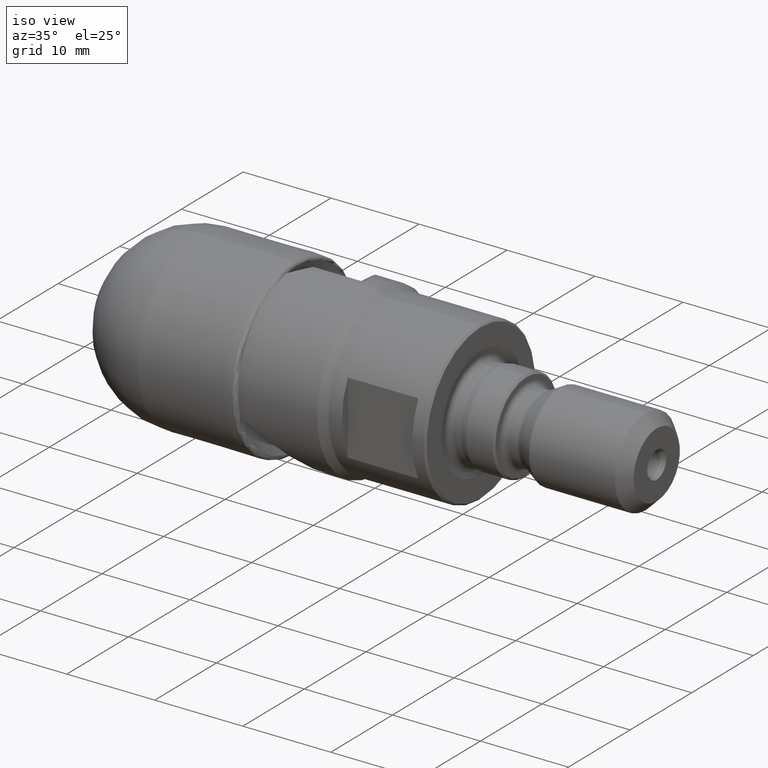
[diagram: clean part render]
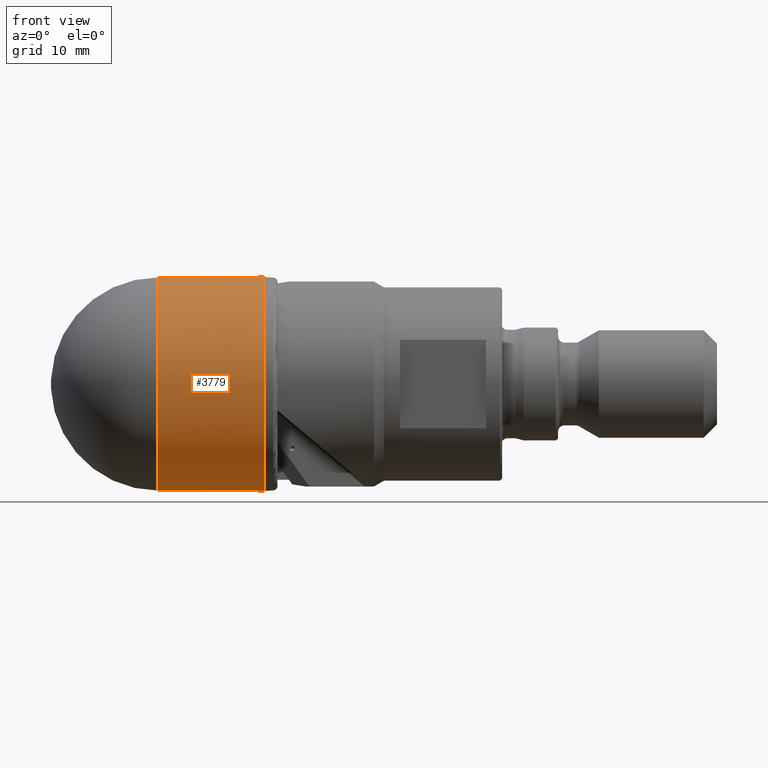
[diagram: tour spotlight — one face highlighted and labeled with its STEP entity id]
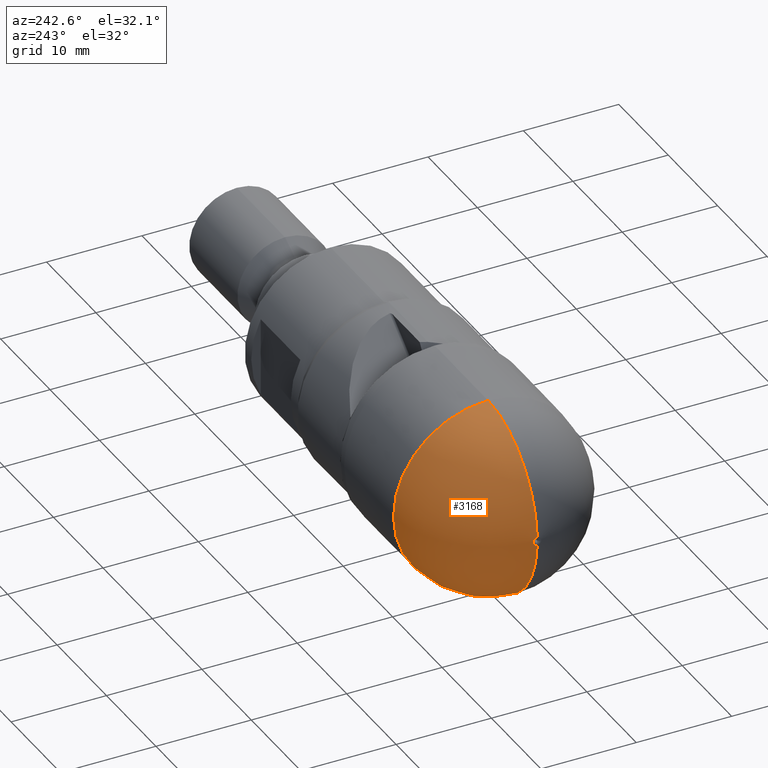
[diagram: tour spotlight — one face highlighted and labeled with its STEP entity id]
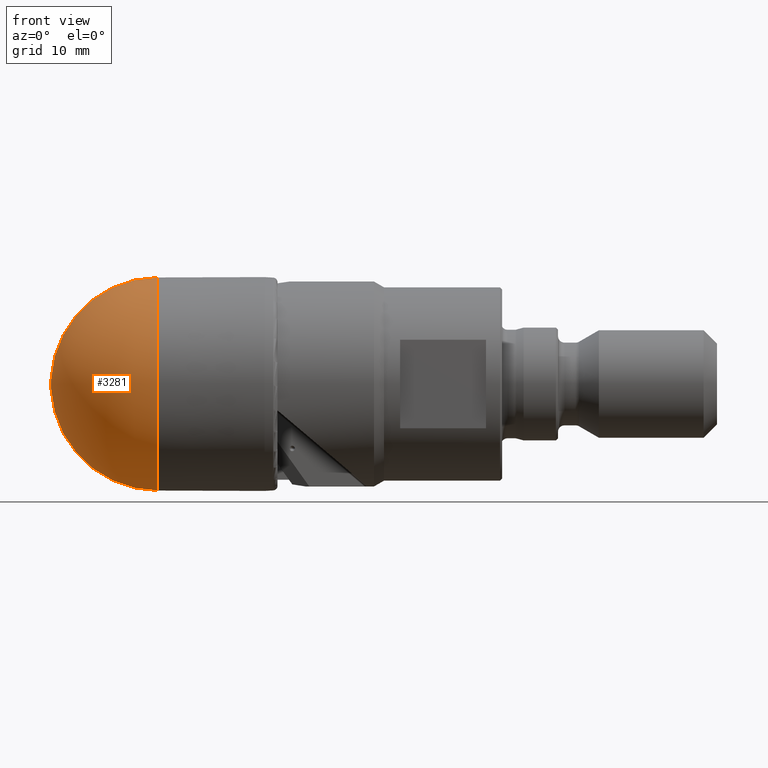
[diagram: tour spotlight — one face highlighted and labeled with its STEP entity id]
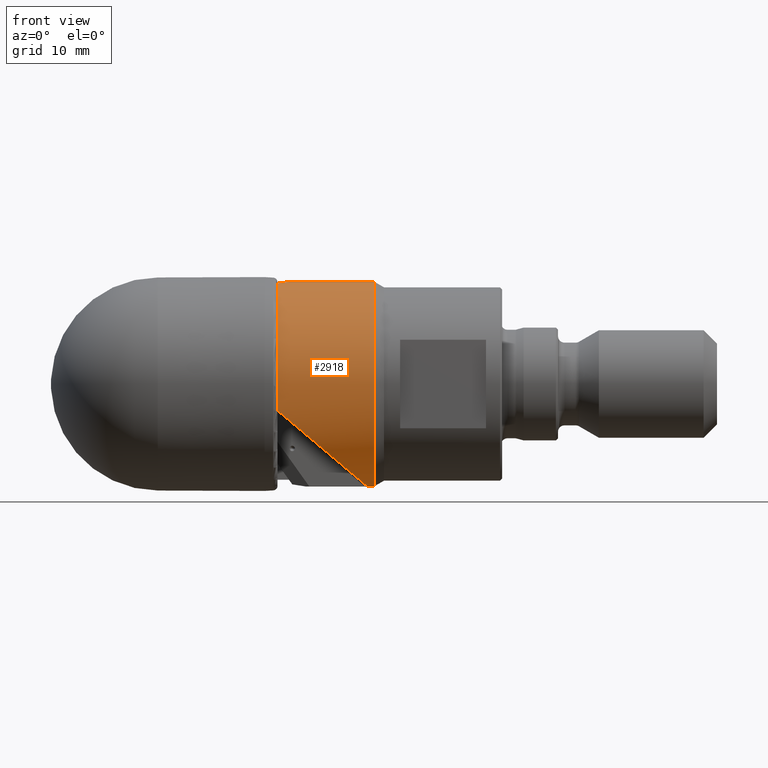
[diagram: tour spotlight — one face highlighted and labeled with its STEP entity id]
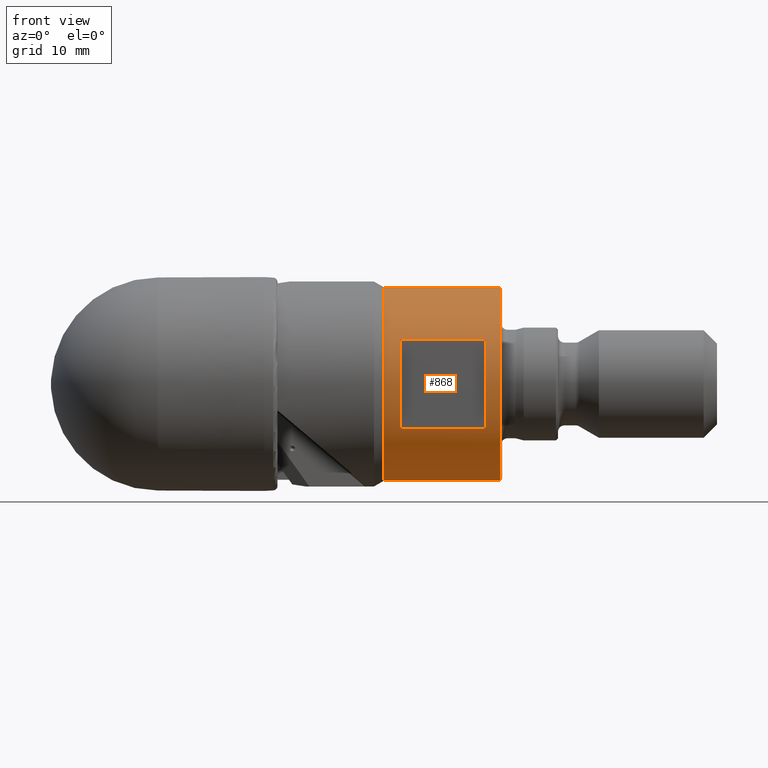
[diagram: tour spotlight — one face highlighted and labeled with its STEP entity id]
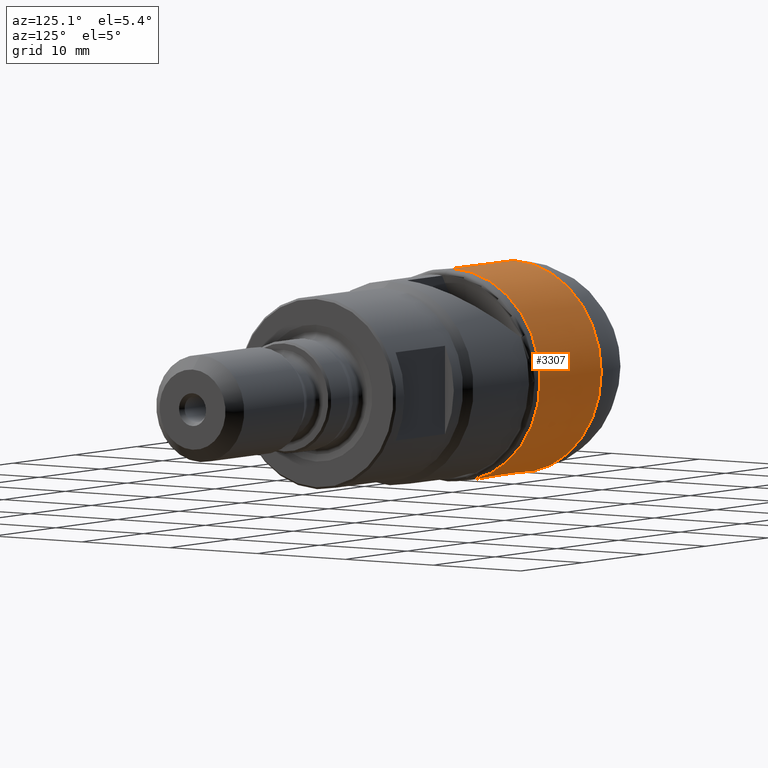
[diagram: tour spotlight — one face highlighted and labeled with its STEP entity id]
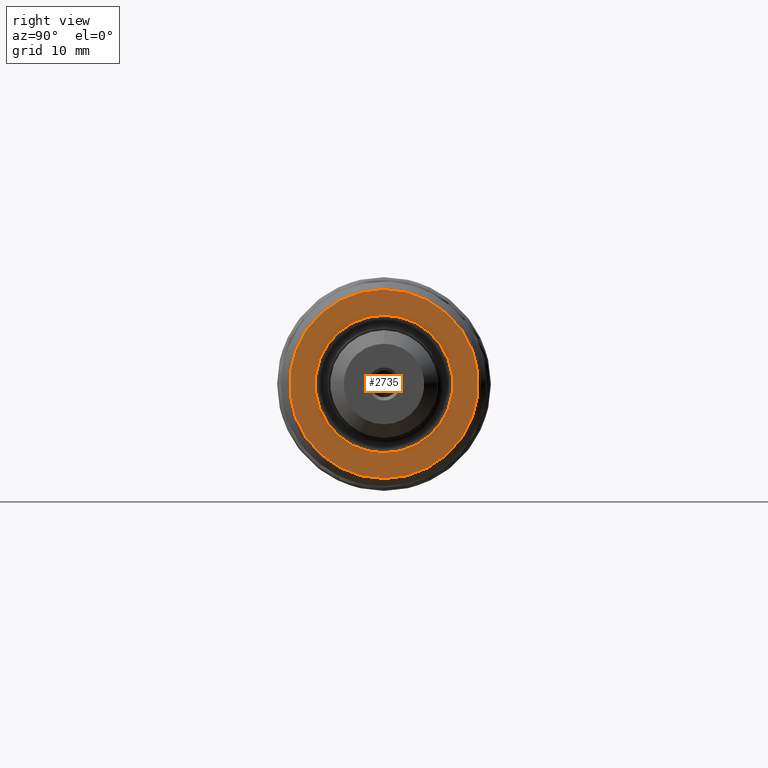
[diagram: tour spotlight — one face highlighted and labeled with its STEP entity id]
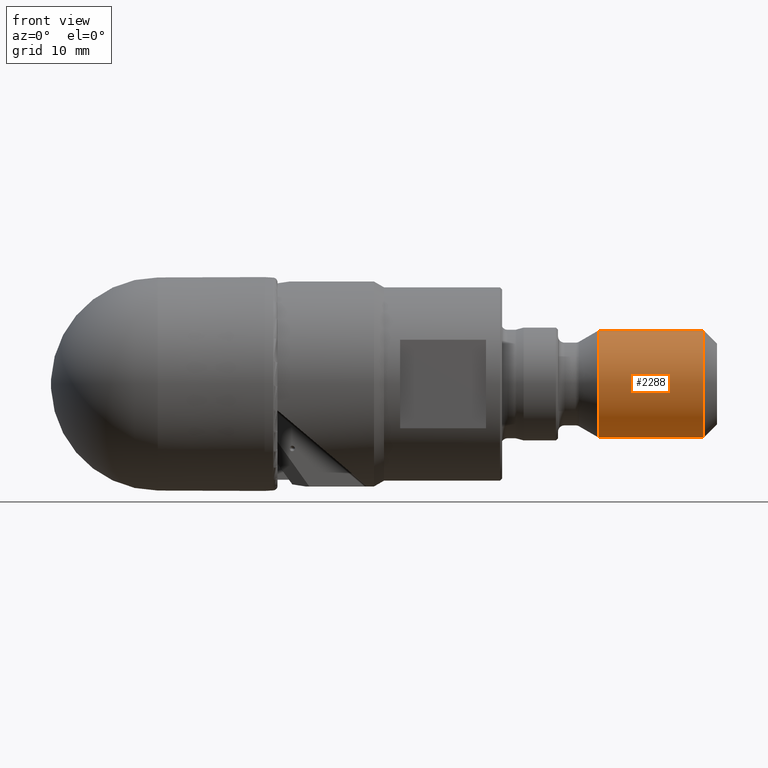
[diagram: tour spotlight — one face highlighted and labeled with its STEP entity id]
A machine part: a face-by-face anatomy tour. The part has 124 B-rep faces; the first image is the clean iso view, then the 8 largest visible faces are spotlighted one at a time (largest first), each with its STEP entity span.

Face 1 — front view, entity #3779. In plain terms, the highlighted conical surface has half-angle 0.193 deg.
Definition (entity closure, byte-faithful):
#105 = ORIENTED_EDGE ( 'NONE', *, *, #1926, .T. ) ;
#227 = VECTOR ( 'NONE', #1016, 1000.000000000000114 ) ;
#476 = EDGE_CURVE ( 'NONE', #3417, #1072, #1093, .T. ) ;
#668 = CARTESIAN_POINT ( 'NONE',  ( 9.977918830628297542, 0.0000000000000000000, 9.917655714549034940 ) ) ;
#810 = DIRECTION ( 'NONE',  ( -1.000000000000000000, -0.0000000000000000000, -0.0000000000000000000 ) ) ;
#912 = EDGE_CURVE ( 'NONE', #4302, #4031, #1520, .T. ) ;
#973 = ORIENTED_EDGE ( 'NONE', *, *, #476, .F. ) ;
#1016 = DIRECTION ( 'NONE',  ( 0.9999943437071451280, 0.0000000000000000000, -0.003363413997101391897 ) ) ;
#1027 = CARTESIAN_POINT ( 'NONE',  ( 19.92767951519996217, 0.0000000000000000000, -9.951121068193176100 ) ) ;
#1072 = VERTEX_POINT ( 'NONE', #668 ) ;
#1093 = CIRCLE ( 'NONE', #3479, 9.917655714549036716 ) ;
#1161 = DIRECTION ( 'NONE',  ( 0.0000000000000000000, 0.0000000000000000000, 1.000000000000000000 ) ) ;
#1446 = ORIENTED_EDGE ( 'NONE', *, *, #912, .T. ) ;
#1495 = CONICAL_SURFACE ( 'NONE', #3275, 9.917655714549036716, 0.003363420338600592654 ) ;
#1520 = CIRCLE ( 'NONE', #2700, 9.951121068193176100 ) ;
#1672 = CARTESIAN_POINT ( 'NONE',  ( 9.977918830628297542, 1.214562532586793530E-15, 9.917655714549036716 ) ) ;
#1692 = CARTESIAN_POINT ( 'NONE',  ( 9.977918830628297542, 1.214562532586793530E-15, -9.917655714549034940 ) ) ;
#1710 = VECTOR ( 'NONE', #2021, 1000.000000000000114 ) ;
#1868 = CARTESIAN_POINT ( 'NONE',  ( 19.92767951519996217, 0.0000000000000000000, 0.0000000000000000000 ) ) ;
#1926 = EDGE_CURVE ( 'NONE', #3417, #4302, #2418, .T. ) ;
#2021 = DIRECTION ( 'NONE',  ( 0.9999943437071451280, 4.118994185757624224E-19, 0.003363413997101391897 ) ) ;
#2418 = LINE ( 'NONE', #2519, #227 ) ;
#2421 = LINE ( 'NONE', #1672, #1710 ) ;
#2519 = CARTESIAN_POINT ( 'NONE',  ( 9.977918830628297542, 0.0000000000000000000, -9.917655714549036716 ) ) ;
#2584 = DIRECTION ( 'NONE',  ( 0.0000000000000000000, 0.0000000000000000000, 1.000000000000000000 ) ) ;
#2700 = AXIS2_PLACEMENT_3D ( 'NONE', #1868, #4361, #1161 ) ;
#2984 = CARTESIAN_POINT ( 'NONE',  ( 9.977918830628297542, 0.0000000000000000000, 0.0000000000000000000 ) ) ;
#3030 = CARTESIAN_POINT ( 'NONE',  ( 9.977918830628297542, 0.0000000000000000000, 0.0000000000000000000 ) ) ;
#3078 = EDGE_LOOP ( 'NONE', ( #3845, #973, #105, #1446 ) ) ;
#3148 = CARTESIAN_POINT ( 'NONE',  ( 19.92767951519996217, 1.218660856409056456E-15, 9.951121068193176100 ) ) ;
#3275 = AXIS2_PLACEMENT_3D ( 'NONE', #3030, #4403, #3701 ) ;
#3323 = FACE_OUTER_BOUND ( 'NONE', #3078, .T. ) ;
#3417 = VERTEX_POINT ( 'NONE', #1692 ) ;
#3479 = AXIS2_PLACEMENT_3D ( 'NONE', #2984, #810, #2584 ) ;
#3701 = DIRECTION ( 'NONE',  ( 0.0000000000000000000, 0.0000000000000000000, -1.000000000000000000 ) ) ;
#3779 = ADVANCED_FACE ( 'NONE', ( #3323 ), #1495, .T. ) ;
#3845 = ORIENTED_EDGE ( 'NONE', *, *, #3945, .F. ) ;
#3945 = EDGE_CURVE ( 'NONE', #1072, #4031, #2421, .T. ) ;
#4031 = VERTEX_POINT ( 'NONE', #3148 ) ;
#4302 = VERTEX_POINT ( 'NONE', #1027 ) ;
#4361 = DIRECTION ( 'NONE',  ( -1.000000000000000000, -0.0000000000000000000, -0.0000000000000000000 ) ) ;
#4403 = DIRECTION ( 'NONE',  ( 1.000000000000000000, 0.0000000000000000000, 0.0000000000000000000 ) ) ;

Face 2 — auxiliary view, entity #3168. In plain terms, the highlighted toroidal blend (fillet) surface has major radius 0.0688 mm and minor (blend) radius 9.9865 mm.
Definition (entity closure, byte-faithful):
#46 = CARTESIAN_POINT ( 'NONE',  ( 9.977918830628297542, 0.0000000000000000000, 0.0000000000000000000 ) ) ;
#173 = ORIENTED_EDGE ( 'NONE', *, *, #4197, .T. ) ;
#305 = CARTESIAN_POINT ( 'NONE',  ( 10.01150745136221865, 0.0000000000000000000, 0.0000000000000000000 ) ) ;
#363 = DIRECTION ( 'NONE',  ( -1.000000000000000000, -0.0000000000000000000, -0.0000000000000000000 ) ) ;
#590 = TOROIDAL_SURFACE ( 'NONE', #2241, -0.06875415821485775236, 9.986466359142205818 ) ;
#668 = CARTESIAN_POINT ( 'NONE',  ( 9.977918830628297542, 0.0000000000000000000, 9.917655714549034940 ) ) ;
#726 = VERTEX_POINT ( 'NONE', #3970 ) ;
#1063 = ORIENTED_EDGE ( 'NONE', *, *, #2788, .T. ) ;
#1072 = VERTEX_POINT ( 'NONE', #668 ) ;
#1197 = AXIS2_PLACEMENT_3D ( 'NONE', #46, #3567, #4316 ) ;
#1211 = EDGE_CURVE ( 'NONE', #1072, #726, #1537, .T. ) ;
#1464 = CARTESIAN_POINT ( 'NONE',  ( 0.03761423311616877985, 5.293037686104763081E-17, -0.4322093267863013621 ) ) ;
#1490 = CIRCLE ( 'NONE', #4237, 9.986466359142205818 ) ;
#1537 = CIRCLE ( 'NONE', #4141, 9.986466359142205818 ) ;
#1692 = CARTESIAN_POINT ( 'NONE',  ( 9.977918830628297542, 1.214562532586793530E-15, -9.917655714549034940 ) ) ;
#1796 = DIRECTION ( 'NONE',  ( 0.0000000000000000000, 0.0000000000000000000, 1.000000000000000000 ) ) ;
#1811 = VERTEX_POINT ( 'NONE', #1464 ) ;
#1956 = EDGE_CURVE ( 'NONE', #726, #1811, #2011, .T. ) ;
#2011 = CIRCLE ( 'NONE', #3418, 0.4322093267862326393 ) ;
#2129 = EDGE_LOOP ( 'NONE', ( #1063, #173, #2575, #3375 ) ) ;
#2169 = DIRECTION ( 'NONE',  ( 0.0000000000000000000, 0.0000000000000000000, 1.000000000000000000 ) ) ;
#2189 = DIRECTION ( 'NONE',  ( 0.0000000000000000000, -1.000000000000000000, 0.0000000000000000000 ) ) ;
#2241 = AXIS2_PLACEMENT_3D ( 'NONE', #305, #3513, #1796 ) ;
#2248 = DIRECTION ( 'NONE',  ( -0.0000000000000000000, 1.000000000000000000, 1.224646799147353207E-16 ) ) ;
#2575 = ORIENTED_EDGE ( 'NONE', *, *, #1956, .F. ) ;
#2788 = EDGE_CURVE ( 'NONE', #1072, #3417, #4332, .T. ) ;
#2981 = DIRECTION ( 'NONE',  ( 0.0000000000000000000, 0.0000000000000000000, -1.000000000000000000 ) ) ;
#3168 = ADVANCED_FACE ( 'NONE', ( #4089 ), #590, .T. ) ;
#3375 = ORIENTED_EDGE ( 'NONE', *, *, #1211, .F. ) ;
#3417 = VERTEX_POINT ( 'NONE', #1692 ) ;
#3418 = AXIS2_PLACEMENT_3D ( 'NONE', #3850, #363, #2169 ) ;
#3513 = DIRECTION ( 'NONE',  ( -1.000000000000000000, -0.0000000000000000000, -0.0000000000000000000 ) ) ;
#3567 = DIRECTION ( 'NONE',  ( -1.000000000000000000, -0.0000000000000000000, -0.0000000000000000000 ) ) ;
#3605 = CARTESIAN_POINT ( 'NONE',  ( 10.01150745136221865, 0.0000000000000000000, -0.06875415821485775236 ) ) ;
#3680 = DIRECTION ( 'NONE',  ( 0.0000000000000000000, -1.224646799147352961E-16, 1.000000000000000000 ) ) ;
#3850 = CARTESIAN_POINT ( 'NONE',  ( 0.03761423311616877985, 0.0000000000000000000, 0.0000000000000000000 ) ) ;
#3958 = CARTESIAN_POINT ( 'NONE',  ( 10.01150745136221865, -8.419955978589624567E-18, 0.06875415821485775236 ) ) ;
#3970 = CARTESIAN_POINT ( 'NONE',  ( 0.03761423311616877985, 0.0000000000000000000, 0.4322093267863013621 ) ) ;
#4089 = FACE_OUTER_BOUND ( 'NONE', #2129, .T. ) ;
#4141 = AXIS2_PLACEMENT_3D ( 'NONE', #3605, #2189, #2981 ) ;
#4197 = EDGE_CURVE ( 'NONE', #3417, #1811, #1490, .T. ) ;
#4237 = AXIS2_PLACEMENT_3D ( 'NONE', #3958, #2248, #3680 ) ;
#4316 = DIRECTION ( 'NONE',  ( 0.0000000000000000000, 0.0000000000000000000, 1.000000000000000000 ) ) ;
#4332 = CIRCLE ( 'NONE', #1197, 9.917655714549036716 ) ;

Face 3 — front view, entity #3281. In plain terms, the highlighted toroidal blend (fillet) surface has major radius 0.0688 mm and minor (blend) radius 9.9865 mm.
Definition (entity closure, byte-faithful):
#11 = DIRECTION ( 'NONE',  ( 0.0000000000000000000, 0.0000000000000000000, 1.000000000000000000 ) ) ;
#476 = EDGE_CURVE ( 'NONE', #3417, #1072, #1093, .T. ) ;
#668 = CARTESIAN_POINT ( 'NONE',  ( 9.977918830628297542, 0.0000000000000000000, 9.917655714549034940 ) ) ;
#677 = ORIENTED_EDGE ( 'NONE', *, *, #1895, .F. ) ;
#681 = FACE_OUTER_BOUND ( 'NONE', #1840, .T. ) ;
#726 = VERTEX_POINT ( 'NONE', #3970 ) ;
#810 = DIRECTION ( 'NONE',  ( -1.000000000000000000, -0.0000000000000000000, -0.0000000000000000000 ) ) ;
#847 = ORIENTED_EDGE ( 'NONE', *, *, #4197, .F. ) ;
#1072 = VERTEX_POINT ( 'NONE', #668 ) ;
#1093 = CIRCLE ( 'NONE', #3479, 9.917655714549036716 ) ;
#1211 = EDGE_CURVE ( 'NONE', #1072, #726, #1537, .T. ) ;
#1458 = CARTESIAN_POINT ( 'NONE',  ( 0.03761423311616877985, 0.0000000000000000000, 0.0000000000000000000 ) ) ;
#1464 = CARTESIAN_POINT ( 'NONE',  ( 0.03761423311616877985, 5.293037686104763081E-17, -0.4322093267863013621 ) ) ;
#1490 = CIRCLE ( 'NONE', #4237, 9.986466359142205818 ) ;
#1537 = CIRCLE ( 'NONE', #4141, 9.986466359142205818 ) ;
#1692 = CARTESIAN_POINT ( 'NONE',  ( 9.977918830628297542, 1.214562532586793530E-15, -9.917655714549034940 ) ) ;
#1811 = VERTEX_POINT ( 'NONE', #1464 ) ;
#1840 = EDGE_LOOP ( 'NONE', ( #847, #3510, #3540, #677 ) ) ;
#1843 = CARTESIAN_POINT ( 'NONE',  ( 10.01150745136221865, 0.0000000000000000000, 0.0000000000000000000 ) ) ;
#1895 = EDGE_CURVE ( 'NONE', #1811, #726, #3737, .T. ) ;
#2189 = DIRECTION ( 'NONE',  ( 0.0000000000000000000, -1.000000000000000000, 0.0000000000000000000 ) ) ;
#2201 = DIRECTION ( 'NONE',  ( 0.0000000000000000000, 0.0000000000000000000, 1.000000000000000000 ) ) ;
#2248 = DIRECTION ( 'NONE',  ( -0.0000000000000000000, 1.000000000000000000, 1.224646799147353207E-16 ) ) ;
#2538 = AXIS2_PLACEMENT_3D ( 'NONE', #1458, #2868, #11 ) ;
#2584 = DIRECTION ( 'NONE',  ( 0.0000000000000000000, 0.0000000000000000000, 1.000000000000000000 ) ) ;
#2641 = DIRECTION ( 'NONE',  ( -1.000000000000000000, -0.0000000000000000000, -0.0000000000000000000 ) ) ;
#2868 = DIRECTION ( 'NONE',  ( -1.000000000000000000, -0.0000000000000000000, -0.0000000000000000000 ) ) ;
#2981 = DIRECTION ( 'NONE',  ( 0.0000000000000000000, 0.0000000000000000000, -1.000000000000000000 ) ) ;
#2984 = CARTESIAN_POINT ( 'NONE',  ( 9.977918830628297542, 0.0000000000000000000, 0.0000000000000000000 ) ) ;
#3281 = ADVANCED_FACE ( 'NONE', ( #681 ), #3868, .T. ) ;
#3417 = VERTEX_POINT ( 'NONE', #1692 ) ;
#3479 = AXIS2_PLACEMENT_3D ( 'NONE', #2984, #810, #2584 ) ;
#3510 = ORIENTED_EDGE ( 'NONE', *, *, #476, .T. ) ;
#3540 = ORIENTED_EDGE ( 'NONE', *, *, #1211, .T. ) ;
#3605 = CARTESIAN_POINT ( 'NONE',  ( 10.01150745136221865, 0.0000000000000000000, -0.06875415821485775236 ) ) ;
#3680 = DIRECTION ( 'NONE',  ( 0.0000000000000000000, -1.224646799147352961E-16, 1.000000000000000000 ) ) ;
#3723 = AXIS2_PLACEMENT_3D ( 'NONE', #1843, #2641, #2201 ) ;
#3737 = CIRCLE ( 'NONE', #2538, 0.4322093267862326393 ) ;
#3868 = TOROIDAL_SURFACE ( 'NONE', #3723, -0.06875415821485775236, 9.986466359142205818 ) ;
#3958 = CARTESIAN_POINT ( 'NONE',  ( 10.01150745136221865, -8.419955978589624567E-18, 0.06875415821485775236 ) ) ;
#3970 = CARTESIAN_POINT ( 'NONE',  ( 0.03761423311616877985, 0.0000000000000000000, 0.4322093267863013621 ) ) ;
#4141 = AXIS2_PLACEMENT_3D ( 'NONE', #3605, #2189, #2981 ) ;
#4197 = EDGE_CURVE ( 'NONE', #3417, #1811, #1490, .T. ) ;
#4237 = AXIS2_PLACEMENT_3D ( 'NONE', #3958, #2248, #3680 ) ;

Face 4 — front view, entity #2918. In plain terms, the highlighted cylindrical surface (partial cylindrical patch) has radius 9.5361 mm, axis along (-1, 0, 0).
Definition (entity closure, byte-faithful):
#13 = LINE ( 'NONE', #4371, #4610 ) ;
#20 = CARTESIAN_POINT ( 'NONE',  ( 29.15172157439708300, -0.6245637600000000234, -9.515671162479305778 ) ) ;
#33 = CARTESIAN_POINT ( 'NONE',  ( -4.762142644779060241, 0.0000000000000000000, 9.536145844246803449 ) ) ;
#192 = VERTEX_POINT ( 'NONE', #1285 ) ;
#240 =( BOUNDED_CURVE ( )  B_SPLINE_CURVE ( 3, ( #2600, #2254, #1587, #2998 ),
 .UNSPECIFIED., .F., .T. ) 
 B_SPLINE_CURVE_WITH_KNOTS ( ( 4, 4 ),
 ( 2.465021783903518227, 2.530563056709383307 ),
 .UNSPECIFIED. ) 
 CURVE ( )  GEOMETRIC_REPRESENTATION_ITEM ( )  RATIONAL_B_SPLINE_CURVE ( ( 1.000000000000000000, 0.9996420604980074121, 0.9996420604980074121, 1.000000000000000000 ) ) 
 REPRESENTATION_ITEM ( '' )  );
#252 = CARTESIAN_POINT ( 'NONE',  ( -4.762142644779060241, 0.0000000000000000000, 0.0000000000000000000 ) ) ;
#273 = DIRECTION ( 'NONE',  ( 0.0000000000000000000, 0.0000000000000000000, 1.000000000000000000 ) ) ;
#300 = VERTEX_POINT ( 'NONE', #1379 ) ;
#418 = DIRECTION ( 'NONE',  ( -1.000000000000000000, 0.0000000000000000000, 0.0000000000000000000 ) ) ;
#554 = CARTESIAN_POINT ( 'NONE',  ( 21.12163689232756170, -1.742272438048599215, 9.375636741809154628 ) ) ;
#603 = ORIENTED_EDGE ( 'NONE', *, *, #1359, .T. ) ;
#697 = DIRECTION ( 'NONE',  ( -1.000000000000000000, 0.0000000000000000000, 0.0000000000000000000 ) ) ;
#707 = ORIENTED_EDGE ( 'NONE', *, *, #2485, .T. ) ;
#775 = DIRECTION ( 'NONE',  ( -1.000000000000000000, 0.0000000000000000000, 0.0000000000000000000 ) ) ;
#884 = EDGE_CURVE ( 'NONE', #3243, #192, #1963, .T. ) ;
#893 = CARTESIAN_POINT ( 'NONE',  ( 21.12163689232756170, 0.0000000000000000000, 0.0000000000000000000 ) ) ;
#923 =( BOUNDED_CURVE ( )  B_SPLINE_CURVE ( 3, ( #3089, #1616, #969, #2394 ),
 .UNSPECIFIED., .F., .T. ) 
 B_SPLINE_CURVE_WITH_KNOTS ( ( 4, 4 ),
 ( 1.832567195618039158, 3.055017350380077268 ),
 .UNSPECIFIED. ) 
 CURVE ( )  GEOMETRIC_REPRESENTATION_ITEM ( )  RATIONAL_B_SPLINE_CURVE ( ( 1.000000000000000000, 0.8792970639890406170, 0.8792970639890406170, 1.000000000000000000 ) ) 
 REPRESENTATION_ITEM ( '' )  );
#951 = AXIS2_PLACEMENT_3D ( 'NONE', #1478, #2887, #4323 ) ;
#964 = CARTESIAN_POINT ( 'NONE',  ( 29.44695082489856119, -0.7913913871880960960, -9.503309209459306572 ) ) ;
#969 = CARTESIAN_POINT ( 'NONE',  ( 29.01900116096405569, -4.958186012599819392, -9.141663704390127876 ) ) ;
#1048 = VERTEX_POINT ( 'NONE', #2123 ) ;
#1272 = AXIS2_PLACEMENT_3D ( 'NONE', #252, #2343, #273 ) ;
#1285 = CARTESIAN_POINT ( 'NONE',  ( 24.06854663702156216, -0.6245637599999998013, -9.515671162479296896 ) ) ;
#1359 = EDGE_CURVE ( 'NONE', #2799, #3243, #2595, .T. ) ;
#1379 = CARTESIAN_POINT ( 'NONE',  ( 30.10861458749761965, 1.167841048435918451E-15, -9.536145844246805225 ) ) ;
#1382 = EDGE_CURVE ( 'NONE', #2945, #3118, #2009, .T. ) ;
#1394 = CARTESIAN_POINT ( 'NONE',  ( 22.21760609110851803, 0.0000000000000000000, 9.536145844246803449 ) ) ;
#1425 = CARTESIAN_POINT ( 'NONE',  ( 29.39748207900793631, -0.7045848875066805794, -9.510119002160744017 ) ) ;
#1447 = CARTESIAN_POINT ( 'NONE',  ( 29.15172157439708300, -0.6245637600000000234, -9.515671162479305778 ) ) ;
#1448 = CARTESIAN_POINT ( 'NONE',  ( 21.88671934228214866, -0.5848609530017554459, 9.536145844246803449 ) ) ;
#1474 = EDGE_LOOP ( 'NONE', ( #2472, #707, #4561, #2491, #2500, #3524, #603, #3620, #1780 ) ) ;
#1478 = CARTESIAN_POINT ( 'NONE',  ( 30.10861458749761965, 0.0000000000000000000, 5.421010862427522170E-17 ) ) ;
#1584 = DIRECTION ( 'NONE',  ( 1.000000000000000000, 0.0000000000000000000, 0.0000000000000000000 ) ) ;
#1587 = CARTESIAN_POINT ( 'NONE',  ( 23.95918515868608978, -0.4166368088393703206, -9.529318506550453094 ) ) ;
#1616 = CARTESIAN_POINT ( 'NONE',  ( 25.86424368000742291, -8.137512060894142252, -6.475686934874688383 ) ) ;
#1645 = EDGE_CURVE ( 'NONE', #4047, #192, #240, .T. ) ;
#1780 = ORIENTED_EDGE ( 'NONE', *, *, #1645, .F. ) ;
#1798 = CARTESIAN_POINT ( 'NONE',  ( 29.43637771014151028, -0.7583051453429844324, -9.505986356265616166 ) ) ;
#1804 = CARTESIAN_POINT ( 'NONE',  ( 29.44354386413543168, -0.8245637600000023104, -9.500430104392128428 ) ) ;
#1865 = CARTESIAN_POINT ( 'NONE',  ( 21.12163689232756170, -1.742272438048599215, 9.375636741809154628 ) ) ;
#1963 = LINE ( 'NONE', #3373, #3304 ) ;
#2009 =( BOUNDED_CURVE ( )  B_SPLINE_CURVE ( 3, ( #1865, #2463, #1448, #1394 ),
 .UNSPECIFIED., .F., .F. ) 
 B_SPLINE_CURVE_WITH_KNOTS ( ( 4, 4 ),
 ( 2.268961745575222455, 2.452695705409258853 ),
 .UNSPECIFIED. ) 
 CURVE ( )  GEOMETRIC_REPRESENTATION_ITEM ( )  RATIONAL_B_SPLINE_CURVE ( ( 1.000000000000000000, 0.9971887972735045125, 0.9971887972735045125, 1.000000000000000000 ) ) 
 REPRESENTATION_ITEM ( '' )  );
#2113 = CARTESIAN_POINT ( 'NONE',  ( 29.37064966695411528, -0.6839777846900841896, -9.511597960197548218 ) ) ;
#2123 = CARTESIAN_POINT ( 'NONE',  ( 30.10861458749761965, 0.0000000000000000000, 9.536145844246805225 ) ) ;
#2178 = EDGE_CURVE ( 'NONE', #2830, #2799, #923, .T. ) ;
#2254 = CARTESIAN_POINT ( 'NONE',  ( 23.84476684184424045, -0.2083743434762331814, -9.536145844246805225 ) ) ;
#2343 = DIRECTION ( 'NONE',  ( -1.000000000000000000, 0.0000000000000000000, 0.0000000000000000000 ) ) ;
#2381 = CARTESIAN_POINT ( 'NONE',  ( 23.72541455100207131, 1.167841048435918254E-15, -9.536145844246803449 ) ) ;
#2394 = CARTESIAN_POINT ( 'NONE',  ( 29.44354386413543168, -0.8245637600000023104, -9.500430104392128428 ) ) ;
#2463 = CARTESIAN_POINT ( 'NONE',  ( 21.52036638358548615, -1.167255661944966993, 9.482491978206420313 ) ) ;
#2472 = ORIENTED_EDGE ( 'NONE', *, *, #4115, .F. ) ;
#2485 = EDGE_CURVE ( 'NONE', #300, #1048, #4026, .T. ) ;
#2491 = ORIENTED_EDGE ( 'NONE', *, *, #1382, .F. ) ;
#2500 = ORIENTED_EDGE ( 'NONE', *, *, #4535, .T. ) ;
#2595 = B_SPLINE_CURVE_WITH_KNOTS ( 'NONE', 3,
 ( #3862, #964, #1798, #1425, #2113, #3563, #3206, #20 ),
 .UNSPECIFIED., .F., .F.,
 ( 4, 2, 2, 4 ),
 ( 1.626303258728256651E-18, 9.872174404380428935E-05, 0.0001974434880876069524, 0.0003948869761752126038 ),
 .UNSPECIFIED. ) ;
#2600 = CARTESIAN_POINT ( 'NONE',  ( 23.72541455100207131, 1.167841048435918254E-15, -9.536145844246803449 ) ) ;
#2799 = VERTEX_POINT ( 'NONE', #1804 ) ;
#2830 = VERTEX_POINT ( 'NONE', #4342 ) ;
#2887 = DIRECTION ( 'NONE',  ( -1.000000000000000000, 0.0000000000000000000, 0.0000000000000000000 ) ) ;
#2918 = ADVANCED_FACE ( 'NONE', ( #3836 ), #3815, .T. ) ;
#2945 = VERTEX_POINT ( 'NONE', #554 ) ;
#2998 = CARTESIAN_POINT ( 'NONE',  ( 24.06854663702156216, -0.6245637599999998013, -9.515671162479296896 ) ) ;
#3029 = DIRECTION ( 'NONE',  ( 0.0000000000000000000, 0.0000000000000000000, 1.000000000000000000 ) ) ;
#3089 = CARTESIAN_POINT ( 'NONE',  ( 21.12163689232756170, -9.211279939187230426, -2.467873466098385649 ) ) ;
#3118 = VERTEX_POINT ( 'NONE', #4066 ) ;
#3206 = CARTESIAN_POINT ( 'NONE',  ( 29.21788393251552307, -0.6245637600000019107, -9.515671162479304002 ) ) ;
#3243 = VERTEX_POINT ( 'NONE', #1447 ) ;
#3304 = VECTOR ( 'NONE', #418, 1000.000000000000000 ) ;
#3373 = CARTESIAN_POINT ( 'NONE',  ( -4.762142644779060241, -0.6245637600000000234, -9.515671162479302225 ) ) ;
#3524 = ORIENTED_EDGE ( 'NONE', *, *, #2178, .T. ) ;
#3563 = CARTESIAN_POINT ( 'NONE',  ( 29.28405984170153786, -0.6372503526902274507, -9.514881227072361725 ) ) ;
#3581 = CIRCLE ( 'NONE', #4024, 9.536145844246803449 ) ;
#3620 = ORIENTED_EDGE ( 'NONE', *, *, #884, .T. ) ;
#3653 = VECTOR ( 'NONE', #697, 1000.000000000000000 ) ;
#3815 = CYLINDRICAL_SURFACE ( 'NONE', #1272, 9.536145844246803449 ) ;
#3836 = FACE_OUTER_BOUND ( 'NONE', #1474, .T. ) ;
#3862 = CARTESIAN_POINT ( 'NONE',  ( 29.44354386413543168, -0.8245637600000023104, -9.500430104392128428 ) ) ;
#3907 = LINE ( 'NONE', #33, #3653 ) ;
#4024 = AXIS2_PLACEMENT_3D ( 'NONE', #893, #1584, #3029 ) ;
#4026 = CIRCLE ( 'NONE', #951, 9.536145844246805225 ) ;
#4047 = VERTEX_POINT ( 'NONE', #2381 ) ;
#4066 = CARTESIAN_POINT ( 'NONE',  ( 22.21760609110851803, 0.0000000000000000000, 9.536145844246803449 ) ) ;
#4115 = EDGE_CURVE ( 'NONE', #300, #4047, #13, .T. ) ;
#4181 = EDGE_CURVE ( 'NONE', #1048, #3118, #3907, .T. ) ;
#4323 = DIRECTION ( 'NONE',  ( 0.0000000000000000000, 0.0000000000000000000, 1.000000000000000000 ) ) ;
#4342 = CARTESIAN_POINT ( 'NONE',  ( 21.12163689232756170, -9.211279939187230426, -2.467873466098385649 ) ) ;
#4371 = CARTESIAN_POINT ( 'NONE',  ( -4.762142644779060241, 1.167841048435918254E-15, -9.536145844246803449 ) ) ;
#4535 = EDGE_CURVE ( 'NONE', #2945, #2830, #3581, .T. ) ;
#4561 = ORIENTED_EDGE ( 'NONE', *, *, #4181, .T. ) ;
#4610 = VECTOR ( 'NONE', #775, 1000.000000000000000 ) ;

Face 5 — front view, entity #868. In plain terms, the highlighted cylindrical surface (partial cylindrical patch) has radius 9 mm, axis along (-1, 0, 0).
Definition (entity closure, byte-faithful):
#28 = CARTESIAN_POINT ( 'NONE',  ( 31.03724643000001393, 0.0000000000000000000, 9.000000000000000000 ) ) ;
#89 = DIRECTION ( 'NONE',  ( -1.000000000000000000, 0.0000000000000000000, 0.0000000000000000000 ) ) ;
#136 = ORIENTED_EDGE ( 'NONE', *, *, #1080, .T. ) ;
#147 = EDGE_CURVE ( 'NONE', #2509, #1091, #4436, .T. ) ;
#181 = DIRECTION ( 'NONE',  ( -1.000000000000000000, 0.0000000000000000000, 0.0000000000000000000 ) ) ;
#202 = CARTESIAN_POINT ( 'NONE',  ( -4.762142644779060241, 0.0000000000000000000, 9.000000000000000000 ) ) ;
#220 = VECTOR ( 'NONE', #1783, 1000.000000000000000 ) ;
#286 = VECTOR ( 'NONE', #606, 1000.000000000000000 ) ;
#296 = ORIENTED_EDGE ( 'NONE', *, *, #1062, .F. ) ;
#316 = CARTESIAN_POINT ( 'NONE',  ( -4.762142644779060241, 1.102182119232617714E-15, -9.000000000000000000 ) ) ;
#319 = CIRCLE ( 'NONE', #1283, 9.000000000000000000 ) ;
#328 = VERTEX_POINT ( 'NONE', #1733 ) ;
#495 = FACE_BOUND ( 'NONE', #1889, .T. ) ;
#606 = DIRECTION ( 'NONE',  ( 1.000000000000000000, -0.0000000000000000000, -0.0000000000000000000 ) ) ;
#692 = LINE ( 'NONE', #316, #220 ) ;
#693 = VERTEX_POINT ( 'NONE', #3209 ) ;
#752 = EDGE_CURVE ( 'NONE', #328, #2509, #1745, .T. ) ;
#813 = AXIS2_PLACEMENT_3D ( 'NONE', #4416, #1220, #2636 ) ;
#868 = ADVANCED_FACE ( 'NONE', ( #1231, #495 ), #4382, .T. ) ;
#1054 = DIRECTION ( 'NONE',  ( -1.000000000000000000, 0.0000000000000000000, 0.0000000000000000000 ) ) ;
#1062 = EDGE_CURVE ( 'NONE', #328, #2046, #692, .T. ) ;
#1080 = EDGE_CURVE ( 'NONE', #4563, #3311, #2103, .T. ) ;
#1091 = VERTEX_POINT ( 'NONE', #28 ) ;
#1220 = DIRECTION ( 'NONE',  ( 1.000000000000000000, 0.0000000000000000000, 0.0000000000000000000 ) ) ;
#1231 = FACE_OUTER_BOUND ( 'NONE', #3166, .T. ) ;
#1283 = AXIS2_PLACEMENT_3D ( 'NONE', #3988, #1054, #2901 ) ;
#1294 = AXIS2_PLACEMENT_3D ( 'NONE', #3354, #89, #2325 ) ;
#1427 = DIRECTION ( 'NONE',  ( -1.000000000000000000, 0.0000000000000000000, 0.0000000000000000000 ) ) ;
#1449 = EDGE_CURVE ( 'NONE', #2046, #1091, #319, .T. ) ;
#1671 = EDGE_CURVE ( 'NONE', #1850, #693, #3077, .T. ) ;
#1733 = CARTESIAN_POINT ( 'NONE',  ( 41.83724643000000754, 1.102182119232617714E-15, -9.000000000000000000 ) ) ;
#1745 = CIRCLE ( 'NONE', #2930, 9.000000000000000000 ) ;
#1783 = DIRECTION ( 'NONE',  ( -1.000000000000000000, 0.0000000000000000000, 0.0000000000000000000 ) ) ;
#1850 = VERTEX_POINT ( 'NONE', #3765 ) ;
#1887 = DIRECTION ( 'NONE',  ( 0.0000000000000000000, 0.0000000000000000000, 1.000000000000000000 ) ) ;
#1889 = EDGE_LOOP ( 'NONE', ( #136, #2966, #4221, #3789 ) ) ;
#2046 = VERTEX_POINT ( 'NONE', #2635 ) ;
#2103 = LINE ( 'NONE', #4275, #3042 ) ;
#2185 = DIRECTION ( 'NONE',  ( 0.0000000000000000000, 0.0000000000000000000, 1.000000000000000000 ) ) ;
#2240 = EDGE_CURVE ( 'NONE', #693, #4563, #4611, .T. ) ;
#2307 = CIRCLE ( 'NONE', #4170, 9.000000000000000000 ) ;
#2325 = DIRECTION ( 'NONE',  ( 0.0000000000000000000, 0.0000000000000000000, 1.000000000000000000 ) ) ;
#2384 = ORIENTED_EDGE ( 'NONE', *, *, #1449, .F. ) ;
#2415 = VECTOR ( 'NONE', #181, 1000.000000000000000 ) ;
#2509 = VERTEX_POINT ( 'NONE', #3046 ) ;
#2635 = CARTESIAN_POINT ( 'NONE',  ( 31.03724643000001393, 1.135011583834268280E-15, -9.000000000000000000 ) ) ;
#2636 = DIRECTION ( 'NONE',  ( 0.0000000000000000000, 0.0000000000000000000, -1.000000000000000000 ) ) ;
#2901 = DIRECTION ( 'NONE',  ( 0.0000000000000000000, 0.0000000000000000000, 1.000000000000000000 ) ) ;
#2930 = AXIS2_PLACEMENT_3D ( 'NONE', #3918, #1427, #2185 ) ;
#2966 = ORIENTED_EDGE ( 'NONE', *, *, #3696, .T. ) ;
#3042 = VECTOR ( 'NONE', #4248, 1000.000000000000000 ) ;
#3046 = CARTESIAN_POINT ( 'NONE',  ( 41.83724643000000754, 0.0000000000000000000, 9.000000000000000000 ) ) ;
#3077 = LINE ( 'NONE', #3391, #286 ) ;
#3166 = EDGE_LOOP ( 'NONE', ( #296, #4476, #4313, #2384 ) ) ;
#3209 = CARTESIAN_POINT ( 'NONE',  ( 40.53724643000001038, -8.000000000000000000, 4.123105625617661474 ) ) ;
#3311 = VERTEX_POINT ( 'NONE', #3637 ) ;
#3354 = CARTESIAN_POINT ( 'NONE',  ( -4.762142644779060241, 0.0000000000000000000, 0.0000000000000000000 ) ) ;
#3391 = CARTESIAN_POINT ( 'NONE',  ( -4.762142644779060241, -8.000000000000000000, 4.123105625617659697 ) ) ;
#3637 = CARTESIAN_POINT ( 'NONE',  ( 32.53724643000000327, -8.000000000000000000, -4.123105625617659697 ) ) ;
#3696 = EDGE_CURVE ( 'NONE', #3311, #1850, #2307, .T. ) ;
#3697 = DIRECTION ( 'NONE',  ( -1.000000000000000000, 0.0000000000000000000, 0.0000000000000000000 ) ) ;
#3765 = CARTESIAN_POINT ( 'NONE',  ( 32.53724643000000327, -8.000000000000000000, 4.123105625617658809 ) ) ;
#3789 = ORIENTED_EDGE ( 'NONE', *, *, #2240, .T. ) ;
#3918 = CARTESIAN_POINT ( 'NONE',  ( 41.83724643000000754, 0.0000000000000000000, 0.0000000000000000000 ) ) ;
#3988 = CARTESIAN_POINT ( 'NONE',  ( 31.03724643000001393, 0.0000000000000000000, 0.0000000000000000000 ) ) ;
#3998 = CARTESIAN_POINT ( 'NONE',  ( 32.53724643000000327, 0.0000000000000000000, 0.0000000000000000000 ) ) ;
#4049 = CARTESIAN_POINT ( 'NONE',  ( 40.53724643000001038, -8.000000000000000000, -4.123105625617657921 ) ) ;
#4170 = AXIS2_PLACEMENT_3D ( 'NONE', #3998, #3697, #1887 ) ;
#4221 = ORIENTED_EDGE ( 'NONE', *, *, #1671, .T. ) ;
#4248 = DIRECTION ( 'NONE',  ( -1.000000000000000000, 0.0000000000000000000, 0.0000000000000000000 ) ) ;
#4275 = CARTESIAN_POINT ( 'NONE',  ( -4.762142644779060241, -8.000000000000000000, -4.123105625617659697 ) ) ;
#4313 = ORIENTED_EDGE ( 'NONE', *, *, #147, .T. ) ;
#4382 = CYLINDRICAL_SURFACE ( 'NONE', #1294, 9.000000000000000000 ) ;
#4416 = CARTESIAN_POINT ( 'NONE',  ( 40.53724643000001038, 0.0000000000000000000, 0.0000000000000000000 ) ) ;
#4436 = LINE ( 'NONE', #202, #2415 ) ;
#4476 = ORIENTED_EDGE ( 'NONE', *, *, #752, .T. ) ;
#4563 = VERTEX_POINT ( 'NONE', #4049 ) ;
#4611 = CIRCLE ( 'NONE', #813, 9.000000000000000000 ) ;

Face 6 — auxiliary view, entity #3307. In plain terms, the highlighted conical surface has half-angle 0.193 deg.
Definition (entity closure, byte-faithful):
#46 = CARTESIAN_POINT ( 'NONE',  ( 9.977918830628297542, 0.0000000000000000000, 0.0000000000000000000 ) ) ;
#227 = VECTOR ( 'NONE', #1016, 1000.000000000000114 ) ;
#668 = CARTESIAN_POINT ( 'NONE',  ( 9.977918830628297542, 0.0000000000000000000, 9.917655714549034940 ) ) ;
#761 = DIRECTION ( 'NONE',  ( -1.000000000000000000, -0.0000000000000000000, -0.0000000000000000000 ) ) ;
#781 = DIRECTION ( 'NONE',  ( 0.0000000000000000000, 0.0000000000000000000, -1.000000000000000000 ) ) ;
#1016 = DIRECTION ( 'NONE',  ( 0.9999943437071451280, 0.0000000000000000000, -0.003363413997101391897 ) ) ;
#1027 = CARTESIAN_POINT ( 'NONE',  ( 19.92767951519996217, 0.0000000000000000000, -9.951121068193176100 ) ) ;
#1072 = VERTEX_POINT ( 'NONE', #668 ) ;
#1110 = AXIS2_PLACEMENT_3D ( 'NONE', #4358, #3276, #781 ) ;
#1197 = AXIS2_PLACEMENT_3D ( 'NONE', #46, #3567, #4316 ) ;
#1343 = ORIENTED_EDGE ( 'NONE', *, *, #3945, .T. ) ;
#1473 = EDGE_CURVE ( 'NONE', #4031, #4302, #3893, .T. ) ;
#1672 = CARTESIAN_POINT ( 'NONE',  ( 9.977918830628297542, 1.214562532586793530E-15, 9.917655714549036716 ) ) ;
#1692 = CARTESIAN_POINT ( 'NONE',  ( 9.977918830628297542, 1.214562532586793530E-15, -9.917655714549034940 ) ) ;
#1710 = VECTOR ( 'NONE', #2021, 1000.000000000000114 ) ;
#1792 = ORIENTED_EDGE ( 'NONE', *, *, #1473, .T. ) ;
#1845 = DIRECTION ( 'NONE',  ( 0.0000000000000000000, 0.0000000000000000000, 1.000000000000000000 ) ) ;
#1926 = EDGE_CURVE ( 'NONE', #3417, #4302, #2418, .T. ) ;
#2021 = DIRECTION ( 'NONE',  ( 0.9999943437071451280, 4.118994185757624224E-19, 0.003363413997101391897 ) ) ;
#2324 = EDGE_LOOP ( 'NONE', ( #2783, #1343, #1792, #3256 ) ) ;
#2418 = LINE ( 'NONE', #2519, #227 ) ;
#2421 = LINE ( 'NONE', #1672, #1710 ) ;
#2482 = CARTESIAN_POINT ( 'NONE',  ( 19.92767951519996217, 0.0000000000000000000, 0.0000000000000000000 ) ) ;
#2519 = CARTESIAN_POINT ( 'NONE',  ( 9.977918830628297542, 0.0000000000000000000, -9.917655714549036716 ) ) ;
#2783 = ORIENTED_EDGE ( 'NONE', *, *, #2788, .F. ) ;
#2788 = EDGE_CURVE ( 'NONE', #1072, #3417, #4332, .T. ) ;
#2916 = AXIS2_PLACEMENT_3D ( 'NONE', #2482, #761, #1845 ) ;
#3148 = CARTESIAN_POINT ( 'NONE',  ( 19.92767951519996217, 1.218660856409056456E-15, 9.951121068193176100 ) ) ;
#3256 = ORIENTED_EDGE ( 'NONE', *, *, #1926, .F. ) ;
#3276 = DIRECTION ( 'NONE',  ( 1.000000000000000000, 0.0000000000000000000, 0.0000000000000000000 ) ) ;
#3307 = ADVANCED_FACE ( 'NONE', ( #4005 ), #3489, .T. ) ;
#3417 = VERTEX_POINT ( 'NONE', #1692 ) ;
#3489 = CONICAL_SURFACE ( 'NONE', #1110, 9.917655714549036716, 0.003363420338600592654 ) ;
#3567 = DIRECTION ( 'NONE',  ( -1.000000000000000000, -0.0000000000000000000, -0.0000000000000000000 ) ) ;
#3893 = CIRCLE ( 'NONE', #2916, 9.951121068193176100 ) ;
#3945 = EDGE_CURVE ( 'NONE', #1072, #4031, #2421, .T. ) ;
#4005 = FACE_OUTER_BOUND ( 'NONE', #2324, .T. ) ;
#4031 = VERTEX_POINT ( 'NONE', #3148 ) ;
#4302 = VERTEX_POINT ( 'NONE', #1027 ) ;
#4316 = DIRECTION ( 'NONE',  ( 0.0000000000000000000, 0.0000000000000000000, 1.000000000000000000 ) ) ;
#4332 = CIRCLE ( 'NONE', #1197, 9.917655714549036716 ) ;
#4358 = CARTESIAN_POINT ( 'NONE',  ( 9.977918830628297542, 0.0000000000000000000, 0.0000000000000000000 ) ) ;

Face 7 — right view, entity #2735. In plain terms, the highlighted planar face has unit normal (-1, 0, 0).
Definition (entity closure, byte-faithful):
#1 = DIRECTION ( 'NONE',  ( -1.000000000000000000, 0.0000000000000000000, 0.0000000000000000000 ) ) ;
#22 = CARTESIAN_POINT ( 'NONE',  ( 42.03724643000001038, 7.842017278562019448E-16, 6.403493059404504528 ) ) ;
#67 = CIRCLE ( 'NONE', #2301, 8.799999999999995381 ) ;
#134 = AXIS2_PLACEMENT_3D ( 'NONE', #3212, #2882, #4344 ) ;
#157 = VERTEX_POINT ( 'NONE', #4128 ) ;
#228 = EDGE_CURVE ( 'NONE', #679, #157, #402, .T. ) ;
#402 = CIRCLE ( 'NONE', #550, 6.403493059404504528 ) ;
#426 = EDGE_CURVE ( 'NONE', #2730, #2010, #1933, .T. ) ;
#446 = DIRECTION ( 'NONE',  ( 0.0000000000000000000, 0.0000000000000000000, 1.000000000000000000 ) ) ;
#550 = AXIS2_PLACEMENT_3D ( 'NONE', #1218, #2702, #2333 ) ;
#679 = VERTEX_POINT ( 'NONE', #22 ) ;
#686 = CARTESIAN_POINT ( 'NONE',  ( 42.03724643000001038, 0.0000000000000000000, 8.799999999999995381 ) ) ;
#746 = AXIS2_PLACEMENT_3D ( 'NONE', #3182, #1, #3801 ) ;
#988 = FACE_OUTER_BOUND ( 'NONE', #3174, .T. ) ;
#1031 = EDGE_LOOP ( 'NONE', ( #3130, #4125 ) ) ;
#1218 = CARTESIAN_POINT ( 'NONE',  ( 42.03724643000001038, 0.0000000000000000000, 0.0000000000000000000 ) ) ;
#1349 = DIRECTION ( 'NONE',  ( 0.0000000000000000000, 0.0000000000000000000, 1.000000000000000000 ) ) ;
#1776 = PLANE ( 'NONE',  #746 ) ;
#1905 = CARTESIAN_POINT ( 'NONE',  ( 42.03724643000001038, 0.0000000000000000000, 0.0000000000000000000 ) ) ;
#1933 = CIRCLE ( 'NONE', #134, 8.799999999999995381 ) ;
#2010 = VERTEX_POINT ( 'NONE', #4389 ) ;
#2301 = AXIS2_PLACEMENT_3D ( 'NONE', #1905, #3314, #1349 ) ;
#2305 = CIRCLE ( 'NONE', #2373, 6.403493059404504528 ) ;
#2333 = DIRECTION ( 'NONE',  ( 0.0000000000000000000, 0.0000000000000000000, 1.000000000000000000 ) ) ;
#2373 = AXIS2_PLACEMENT_3D ( 'NONE', #3663, #2900, #446 ) ;
#2702 = DIRECTION ( 'NONE',  ( -1.000000000000000000, 0.0000000000000000000, 0.0000000000000000000 ) ) ;
#2708 = ORIENTED_EDGE ( 'NONE', *, *, #4207, .F. ) ;
#2730 = VERTEX_POINT ( 'NONE', #686 ) ;
#2735 = ADVANCED_FACE ( 'NONE', ( #988, #4521 ), #1776, .F. ) ;
#2882 = DIRECTION ( 'NONE',  ( -1.000000000000000000, 0.0000000000000000000, 0.0000000000000000000 ) ) ;
#2900 = DIRECTION ( 'NONE',  ( -1.000000000000000000, 0.0000000000000000000, 0.0000000000000000000 ) ) ;
#2913 = ORIENTED_EDGE ( 'NONE', *, *, #426, .F. ) ;
#3130 = ORIENTED_EDGE ( 'NONE', *, *, #4428, .T. ) ;
#3174 = EDGE_LOOP ( 'NONE', ( #2913, #2708 ) ) ;
#3182 = CARTESIAN_POINT ( 'NONE',  ( 42.03724643000001038, 8.799999999999995381, 0.0000000000000000000 ) ) ;
#3212 = CARTESIAN_POINT ( 'NONE',  ( 42.03724643000001038, 0.0000000000000000000, 0.0000000000000000000 ) ) ;
#3314 = DIRECTION ( 'NONE',  ( -1.000000000000000000, 0.0000000000000000000, 0.0000000000000000000 ) ) ;
#3663 = CARTESIAN_POINT ( 'NONE',  ( 42.03724643000001038, 0.0000000000000000000, 0.0000000000000000000 ) ) ;
#3801 = DIRECTION ( 'NONE',  ( 0.0000000000000000000, 0.0000000000000000000, 1.000000000000000000 ) ) ;
#4125 = ORIENTED_EDGE ( 'NONE', *, *, #228, .T. ) ;
#4128 = CARTESIAN_POINT ( 'NONE',  ( 42.03724643000001038, 0.0000000000000000000, -6.403493059404504528 ) ) ;
#4207 = EDGE_CURVE ( 'NONE', #2010, #2730, #67, .T. ) ;
#4344 = DIRECTION ( 'NONE',  ( 0.0000000000000000000, 0.0000000000000000000, 1.000000000000000000 ) ) ;
#4389 = CARTESIAN_POINT ( 'NONE',  ( 42.03724643000001038, 1.089935651241144160E-15, -8.799999999999995381 ) ) ;
#4428 = EDGE_CURVE ( 'NONE', #157, #679, #2305, .T. ) ;
#4521 = FACE_BOUND ( 'NONE', #1031, .T. ) ;

Face 8 — front view, entity #2288. In plain terms, the highlighted cylindrical surface (partial cylindrical patch) has radius 5 mm, axis along (-1, 0, 0).
Definition (entity closure, byte-faithful):
#129 = EDGE_CURVE ( 'NONE', #3903, #2647, #544, .T. ) ;
#455 = EDGE_CURVE ( 'NONE', #557, #2647, #878, .T. ) ;
#544 = LINE ( 'NONE', #2957, #2282 ) ;
#547 = CARTESIAN_POINT ( 'NONE',  ( -4.762142644779060241, 0.0000000000000000000, 0.0000000000000000000 ) ) ;
#557 = VERTEX_POINT ( 'NONE', #1967 ) ;
#585 = AXIS2_PLACEMENT_3D ( 'NONE', #547, #3763, #3781 ) ;
#768 = ORIENTED_EDGE ( 'NONE', *, *, #129, .T. ) ;
#878 = CIRCLE ( 'NONE', #3646, 5.000000000000000000 ) ;
#904 = DIRECTION ( 'NONE',  ( -1.000000000000000000, 0.0000000000000000000, 0.0000000000000000000 ) ) ;
#1538 = ORIENTED_EDGE ( 'NONE', *, *, #2819, .F. ) ;
#1967 = CARTESIAN_POINT ( 'NONE',  ( 51.03724643000000327, 0.0000000000000000000, -5.000000000000000000 ) ) ;
#2238 = DIRECTION ( 'NONE',  ( 0.0000000000000000000, 0.0000000000000000000, 1.000000000000000000 ) ) ;
#2282 = VECTOR ( 'NONE', #3676, 1000.000000000000000 ) ;
#2288 = ADVANCED_FACE ( 'NONE', ( #3052 ), #2653, .T. ) ;
#2348 = EDGE_LOOP ( 'NONE', ( #1538, #3640, #768, #3163 ) ) ;
#2391 = CARTESIAN_POINT ( 'NONE',  ( 51.03724643000000327, 6.123233995736766282E-16, 5.000000000000000000 ) ) ;
#2458 = VECTOR ( 'NONE', #4447, 1000.000000000000000 ) ;
#2647 = VERTEX_POINT ( 'NONE', #2391 ) ;
#2653 = CYLINDRICAL_SURFACE ( 'NONE', #585, 5.000000000000000000 ) ;
#2795 = CARTESIAN_POINT ( 'NONE',  ( 60.78724642999999617, 0.0000000000000000000, 5.000000000000000000 ) ) ;
#2819 = EDGE_CURVE ( 'NONE', #3278, #557, #4073, .T. ) ;
#2831 = CIRCLE ( 'NONE', #3426, 5.000000000000000000 ) ;
#2907 = CARTESIAN_POINT ( 'NONE',  ( -4.762142644779060241, 6.123233995736766282E-16, -5.000000000000000000 ) ) ;
#2957 = CARTESIAN_POINT ( 'NONE',  ( -4.762142644779060241, 0.0000000000000000000, 5.000000000000000000 ) ) ;
#3052 = FACE_OUTER_BOUND ( 'NONE', #2348, .T. ) ;
#3154 = DIRECTION ( 'NONE',  ( 0.0000000000000000000, 0.0000000000000000000, 1.000000000000000000 ) ) ;
#3163 = ORIENTED_EDGE ( 'NONE', *, *, #455, .F. ) ;
#3185 = EDGE_CURVE ( 'NONE', #3278, #3903, #2831, .T. ) ;
#3278 = VERTEX_POINT ( 'NONE', #4564 ) ;
#3367 = CARTESIAN_POINT ( 'NONE',  ( 60.78724642999999617, 0.0000000000000000000, 0.0000000000000000000 ) ) ;
#3426 = AXIS2_PLACEMENT_3D ( 'NONE', #3367, #3562, #3154 ) ;
#3562 = DIRECTION ( 'NONE',  ( -1.000000000000000000, 0.0000000000000000000, 0.0000000000000000000 ) ) ;
#3640 = ORIENTED_EDGE ( 'NONE', *, *, #3185, .T. ) ;
#3646 = AXIS2_PLACEMENT_3D ( 'NONE', #3709, #904, #2238 ) ;
#3676 = DIRECTION ( 'NONE',  ( -1.000000000000000000, 0.0000000000000000000, 0.0000000000000000000 ) ) ;
#3709 = CARTESIAN_POINT ( 'NONE',  ( 51.03724643000000327, 0.0000000000000000000, 0.0000000000000000000 ) ) ;
#3763 = DIRECTION ( 'NONE',  ( -1.000000000000000000, 0.0000000000000000000, 0.0000000000000000000 ) ) ;
#3781 = DIRECTION ( 'NONE',  ( 0.0000000000000000000, 0.0000000000000000000, 1.000000000000000000 ) ) ;
#3903 = VERTEX_POINT ( 'NONE', #2795 ) ;
#4073 = LINE ( 'NONE', #2907, #2458 ) ;
#4447 = DIRECTION ( 'NONE',  ( -1.000000000000000000, 0.0000000000000000000, 0.0000000000000000000 ) ) ;
#4564 = CARTESIAN_POINT ( 'NONE',  ( 60.78724642999999617, 6.123233995736766282E-16, -5.000000000000000000 ) ) ;